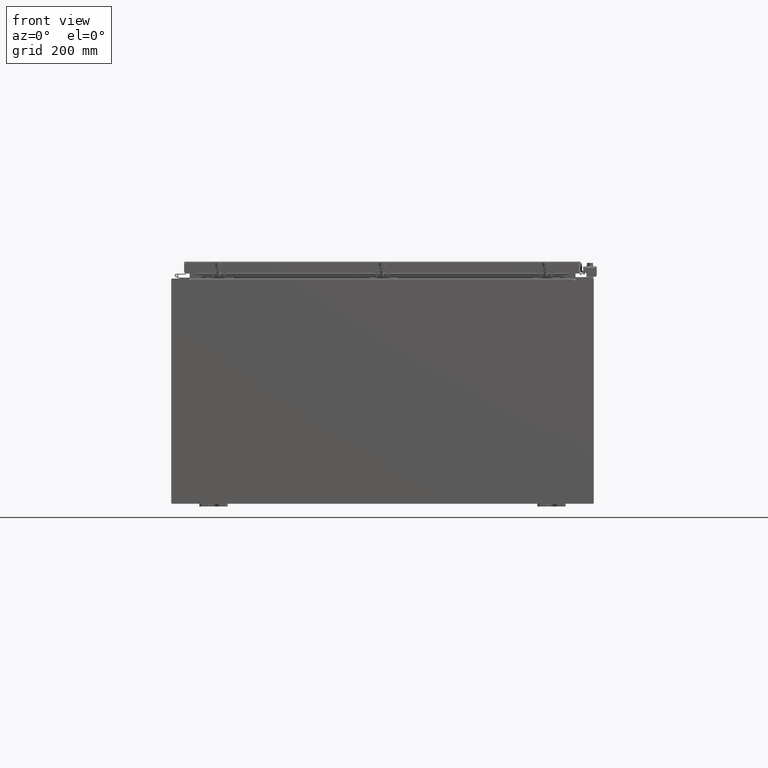
[diagram: clean part render]
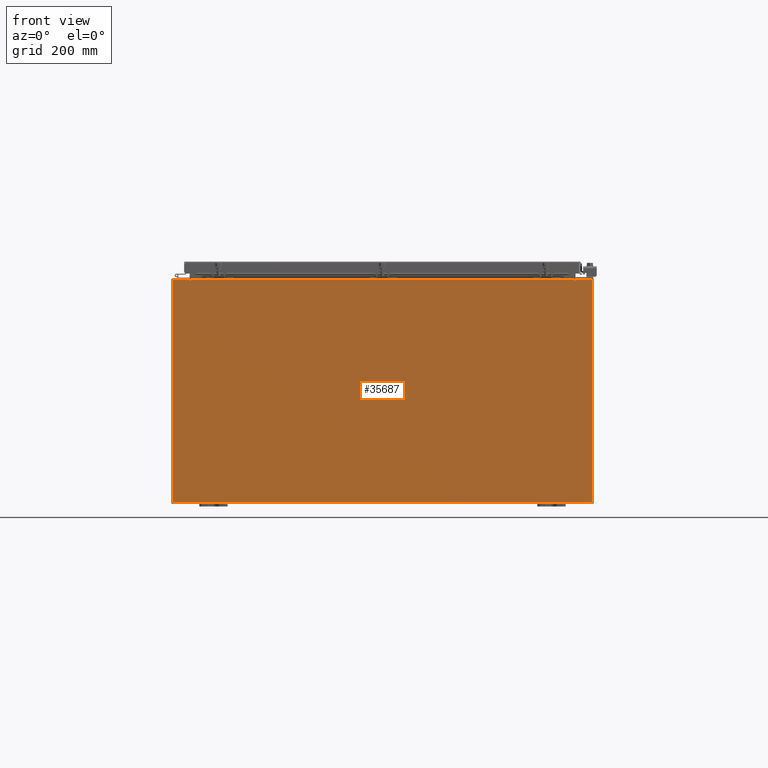
[diagram: same view with one face highlighted and labeled with its STEP entity id]
A machine part, front view. The second image highlights one B-rep face of the part: STEP entity #35687.
In plain terms, the highlighted planar face has unit normal (-0, 1, -0).
Its self-contained STEP definition (entity closure, byte-faithful):
#277 = LINE ( 'NONE', #40615, #34727 ) ;
#352 = ORIENTED_EDGE ( 'NONE', *, *, #31967, .F. ) ;
#647 = VECTOR ( 'NONE', #13419, 39.37007874015748100 ) ;
#1774 = EDGE_CURVE ( 'NONE', #6781, #27131, #17182, .T. ) ;
#1853 = DIRECTION ( 'NONE',  ( 0.0000000000000000000, 0.0000000000000000000, 1.000000000000000000 ) ) ;
#1875 = VERTEX_POINT ( 'NONE', #2196 ) ;
#2127 = EDGE_CURVE ( 'NONE', #17453, #10216, #4650, .T. ) ;
#2196 = CARTESIAN_POINT ( 'NONE',  ( 13.63720000000000400, 0.0000000000000000000, 7.874949999999999200 ) ) ;
#2249 = VECTOR ( 'NONE', #29618, 39.37007874015748100 ) ;
#2708 = CIRCLE ( 'NONE', #23027, 0.01867499999999949400 ) ;
#3106 = VECTOR ( 'NONE', #6733, 39.37007874015748100 ) ;
#3879 = AXIS2_PLACEMENT_3D ( 'NONE', #25682, #42496, #22487 ) ;
#3933 = CARTESIAN_POINT ( 'NONE',  ( -14.92529999999999800, 0.0000000000000000000, 7.925300000000000000 ) ) ;
#4278 = DIRECTION ( 'NONE',  ( 0.0000000000000000000, 0.0000000000000000000, -1.000000000000000000 ) ) ;
#4311 = LINE ( 'NONE', #7590, #39802 ) ;
#4541 = CARTESIAN_POINT ( 'NONE',  ( 13.67455000000000200, 0.0000000000000000000, 7.874949999999999200 ) ) ;
#4650 = LINE ( 'NONE', #42771, #14566 ) ;
#4941 = EDGE_CURVE ( 'NONE', #23762, #27578, #277, .T. ) ;
#5113 = LINE ( 'NONE', #21857, #30675 ) ;
#6723 = CARTESIAN_POINT ( 'NONE',  ( -13.63719999999999800, 3.756290991288361700E-016, 7.912300000000006300 ) ) ;
#6733 = DIRECTION ( 'NONE',  ( -4.340572780400193600E-014, 0.0000000000000000000, -1.000000000000000000 ) ) ;
#6781 = VERTEX_POINT ( 'NONE', #12462 ) ;
#7295 = DIRECTION ( 'NONE',  ( 1.000000000000000000, 0.0000000000000000000, -7.321388497823864400E-017 ) ) ;
#7395 = DIRECTION ( 'NONE',  ( -0.0000000000000000000, 1.000000000000000000, -0.0000000000000000000 ) ) ;
#7524 = CARTESIAN_POINT ( 'NONE',  ( 13.65587500000000200, 0.0000000000000000000, 7.874949999999999200 ) ) ;
#7590 = CARTESIAN_POINT ( 'NONE',  ( 14.92530000000000200, 0.0000000000000000000, 7.925299999999997300 ) ) ;
#7871 = VECTOR ( 'NONE', #36591, 39.37007874015748100 ) ;
#7896 = CARTESIAN_POINT ( 'NONE',  ( 13.63720000000000400, 0.0000000000000000000, 7.912299999999999200 ) ) ;
#8117 = CARTESIAN_POINT ( 'NONE',  ( -14.92529999999999800, 0.0000000000000000000, 7.925300000000000000 ) ) ;
#8251 = CARTESIAN_POINT ( 'NONE',  ( -14.92529999999999800, 0.0000000000000000000, -7.925300000000000000 ) ) ;
#8985 = EDGE_CURVE ( 'NONE', #36618, #13329, #10564, .T. ) ;
#9103 = EDGE_CURVE ( 'NONE', #27131, #23762, #4311, .T. ) ;
#10216 = VERTEX_POINT ( 'NONE', #35706 ) ;
#10315 = EDGE_CURVE ( 'NONE', #19527, #1875, #10438, .T. ) ;
#10438 = CIRCLE ( 'NONE', #20242, 0.01867499999999949400 ) ;
#10564 = LINE ( 'NONE', #6723, #647 ) ;
#10574 = ORIENTED_EDGE ( 'NONE', *, *, #2127, .F. ) ;
#12462 = CARTESIAN_POINT ( 'NONE',  ( 13.67455000000000400, 0.0000000000000000000, 7.925299999999997300 ) ) ;
#12700 = DIRECTION ( 'NONE',  ( -0.0000000000000000000, 1.000000000000000000, -0.0000000000000000000 ) ) ;
#13008 = CARTESIAN_POINT ( 'NONE',  ( -13.63719999999999600, -0.0000000000000000000, 0.0000000000000000000 ) ) ;
#13328 = EDGE_LOOP ( 'NONE', ( #10574, #352, #43214, #38815, #26749, #43192, #32712, #35864, #39292, #38881, #24559, #34473 ) ) ;
#13329 = VERTEX_POINT ( 'NONE', #7896 ) ;
#13419 = DIRECTION ( 'NONE',  ( 1.000000000000000000, 0.0000000000000000000, 0.0000000000000000000 ) ) ;
#14540 = CARTESIAN_POINT ( 'NONE',  ( -13.63719999999999600, 3.756290991288361700E-016, 7.912300000000006300 ) ) ;
#14566 = VECTOR ( 'NONE', #32674, 39.37007874015748100 ) ;
#15563 = EDGE_CURVE ( 'NONE', #27578, #18232, #17778, .T. ) ;
#17182 = LINE ( 'NONE', #3933, #34940 ) ;
#17233 = DIRECTION ( 'NONE',  ( -1.000000000000000000, -0.0000000000000000000, -0.0000000000000000000 ) ) ;
#17453 = VERTEX_POINT ( 'NONE', #19803 ) ;
#17778 = LINE ( 'NONE', #26927, #7871 ) ;
#18232 = VERTEX_POINT ( 'NONE', #26165 ) ;
#19527 = VERTEX_POINT ( 'NONE', #4541 ) ;
#19592 = CARTESIAN_POINT ( 'NONE',  ( 14.92530000000000200, 0.0000000000000000000, -7.925300000000000000 ) ) ;
#19803 = CARTESIAN_POINT ( 'NONE',  ( -13.67454999999999500, 0.0000000000000000000, 7.874949999999999200 ) ) ;
#20242 = AXIS2_PLACEMENT_3D ( 'NONE', #7524, #7395, #27332 ) ;
#20685 = LINE ( 'NONE', #8117, #21738 ) ;
#20852 = LINE ( 'NONE', #26701, #3106 ) ;
#21385 = CARTESIAN_POINT ( 'NONE',  ( -13.63719999999999600, -0.0000000000000000000, 7.874949999999999200 ) ) ;
#21738 = VECTOR ( 'NONE', #28074, 39.37007874015748100 ) ;
#21857 = CARTESIAN_POINT ( 'NONE',  ( 13.63720000000000400, 0.0000000000000000000, 0.0000000000000000000 ) ) ;
#22487 = DIRECTION ( 'NONE',  ( 0.0000000000000000000, -0.0000000000000000000, -1.000000000000000000 ) ) ;
#23027 = AXIS2_PLACEMENT_3D ( 'NONE', #32701, #12700, #36059 ) ;
#23762 = VERTEX_POINT ( 'NONE', #19592 ) ;
#24559 = ORIENTED_EDGE ( 'NONE', *, *, #15563, .T. ) ;
#25682 = CARTESIAN_POINT ( 'NONE',  ( 0.0000000000000000000, 0.0000000000000000000, 0.0000000000000000000 ) ) ;
#26165 = CARTESIAN_POINT ( 'NONE',  ( -14.92529999999999800, 0.0000000000000000000, 7.925300000000000000 ) ) ;
#26701 = CARTESIAN_POINT ( 'NONE',  ( 13.67454999999966100, -0.0000000000000000000, -5.935537951421999000E-013 ) ) ;
#26749 = ORIENTED_EDGE ( 'NONE', *, *, #36179, .F. ) ;
#26927 = CARTESIAN_POINT ( 'NONE',  ( -14.92529999999999800, 0.0000000000000000000, 7.925300000000000000 ) ) ;
#27131 = VERTEX_POINT ( 'NONE', #42443 ) ;
#27332 = DIRECTION ( 'NONE',  ( 0.0000000000000000000, 0.0000000000000000000, -1.000000000000000000 ) ) ;
#27578 = VERTEX_POINT ( 'NONE', #8251 ) ;
#27815 = LINE ( 'NONE', #13008, #2249 ) ;
#28074 = DIRECTION ( 'NONE',  ( 1.000000000000000000, 0.0000000000000000000, -7.321388497823864400E-017 ) ) ;
#29618 = DIRECTION ( 'NONE',  ( 0.0000000000000000000, 0.0000000000000000000, -1.000000000000000000 ) ) ;
#30675 = VECTOR ( 'NONE', #1853, 39.37007874015748100 ) ;
#31184 = EDGE_CURVE ( 'NONE', #36618, #36666, #27815, .T. ) ;
#31967 = EDGE_CURVE ( 'NONE', #36666, #17453, #2708, .T. ) ;
#32674 = DIRECTION ( 'NONE',  ( 0.0000000000000000000, 0.0000000000000000000, 1.000000000000000000 ) ) ;
#32701 = CARTESIAN_POINT ( 'NONE',  ( -13.65587499999999600, 0.0000000000000000000, 7.874949999999999200 ) ) ;
#32712 = ORIENTED_EDGE ( 'NONE', *, *, #35302, .F. ) ;
#32830 = FACE_OUTER_BOUND ( 'NONE', #13328, .T. ) ;
#34473 = ORIENTED_EDGE ( 'NONE', *, *, #37858, .T. ) ;
#34727 = VECTOR ( 'NONE', #17233, 39.37007874015748100 ) ;
#34940 = VECTOR ( 'NONE', #7295, 39.37007874015748100 ) ;
#35302 = EDGE_CURVE ( 'NONE', #6781, #19527, #20852, .T. ) ;
#35687 = ADVANCED_FACE ( 'NONE', ( #32830 ), #39171, .F. ) ;
#35706 = CARTESIAN_POINT ( 'NONE',  ( -13.67454999999999500, 0.0000000000000000000, 7.925300000000000000 ) ) ;
#35864 = ORIENTED_EDGE ( 'NONE', *, *, #1774, .T. ) ;
#36059 = DIRECTION ( 'NONE',  ( 0.0000000000000000000, 0.0000000000000000000, -1.000000000000000000 ) ) ;
#36179 = EDGE_CURVE ( 'NONE', #1875, #13329, #5113, .T. ) ;
#36591 = DIRECTION ( 'NONE',  ( -0.0000000000000000000, -0.0000000000000000000, 1.000000000000000000 ) ) ;
#36618 = VERTEX_POINT ( 'NONE', #14540 ) ;
#36666 = VERTEX_POINT ( 'NONE', #21385 ) ;
#37858 = EDGE_CURVE ( 'NONE', #18232, #10216, #20685, .T. ) ;
#38815 = ORIENTED_EDGE ( 'NONE', *, *, #8985, .T. ) ;
#38881 = ORIENTED_EDGE ( 'NONE', *, *, #4941, .T. ) ;
#39171 = PLANE ( 'NONE',  #3879 ) ;
#39292 = ORIENTED_EDGE ( 'NONE', *, *, #9103, .T. ) ;
#39802 = VECTOR ( 'NONE', #4278, 39.37007874015748100 ) ;
#40615 = CARTESIAN_POINT ( 'NONE',  ( -14.92529999999999800, 0.0000000000000000000, -7.925300000000000000 ) ) ;
#42443 = CARTESIAN_POINT ( 'NONE',  ( 14.92530000000000200, 0.0000000000000000000, 7.925299999999997300 ) ) ;
#42496 = DIRECTION ( 'NONE',  ( 0.0000000000000000000, -1.000000000000000000, 0.0000000000000000000 ) ) ;
#42771 = CARTESIAN_POINT ( 'NONE',  ( -13.67454999999999500, -0.0000000000000000000, 0.0000000000000000000 ) ) ;
#43192 = ORIENTED_EDGE ( 'NONE', *, *, #10315, .F. ) ;
#43214 = ORIENTED_EDGE ( 'NONE', *, *, #31184, .F. ) ;